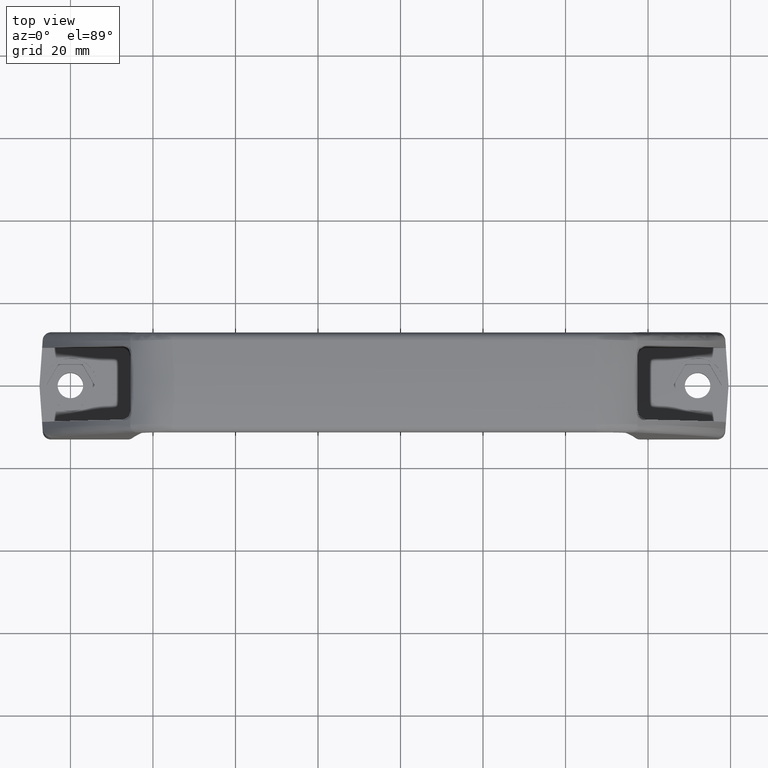
[diagram: clean part render]
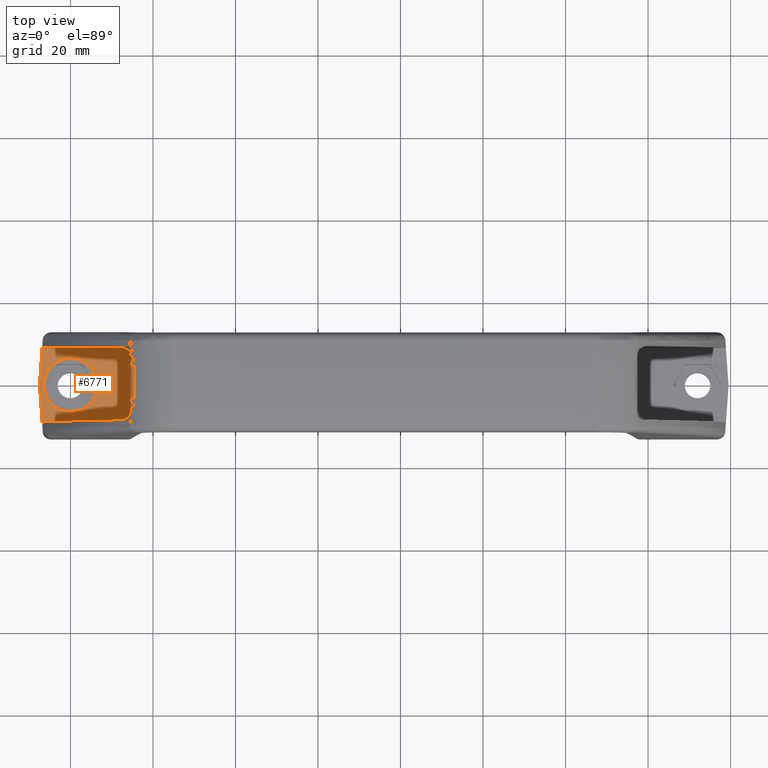
[diagram: same view with one face highlighted and labeled with its STEP entity id]
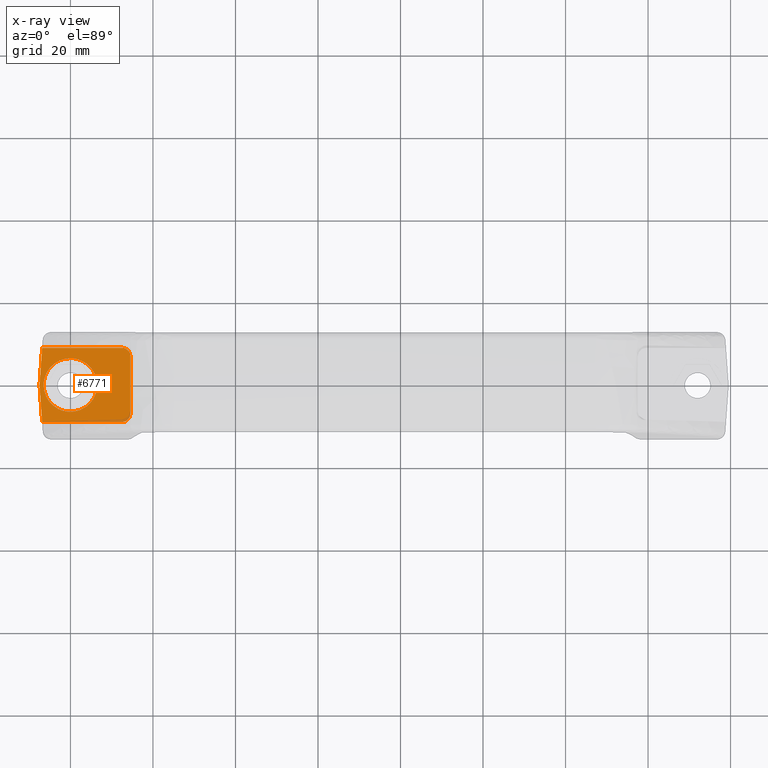
[diagram: x-ray of the same camera — body ghosted, the highlighted face saturated]
A machine part, top view. The second image highlights one B-rep face of the part: STEP entity #6771.
The next image is the same camera in x-ray: the body ghosted, the highlighted face saturated — about 3% of this face is hidden behind the body in this view.
In plain terms, the highlighted face is a freeform B-spline surface patch.
Its self-contained STEP definition (entity closure, byte-faithful):
#271=CARTESIAN_POINT('',(-0.767222561751708,-6.454562227934048,13.000000617466201));
#272=VERTEX_POINT('',#271);
#278=CARTESIAN_POINT('',(6.500000308733251,0.0,13.000000617466201));
#279=VERTEX_POINT('',#278);
#280=CARTESIAN_POINT('',(-0.767222561751708,-6.454562227934048,13.000000617466203));
#281=CARTESIAN_POINT('',(-0.384956796063989,-6.500000308733350,13.000000617466204));
#282=CARTESIAN_POINT('',(-9.947598E-014,-6.500000308733350,13.000000617466201));
#283=CARTESIAN_POINT('',(6.500000308733250,-6.500000308733350,13.000000617466201));
#284=CARTESIAN_POINT('',(6.500000308733251,0.0,13.000000617466201));
#292=(BOUNDED_CURVE()B_SPLINE_CURVE(2,(#280,#281,#282,#283,#284),.UNSPECIFIED.,.F.,.U.)B_SPLINE_CURVE_WITH_KNOTS((3,2,3),(0.229562473513467,0.250000000000000,0.500000000000000),.UNSPECIFIED.)CURVE()GEOMETRIC_REPRESENTATION_ITEM()RATIONAL_B_SPLINE_CURVE((0.956026754183618,0.976055948331097,1.0,0.707106781186548,1.0))REPRESENTATION_ITEM(''));
#293=EDGE_CURVE('',#272,#279,#292,.T.);
#295=CARTESIAN_POINT('',(0.396815526018936,6.487876497887724,13.000000617466201));
#296=VERTEX_POINT('',#295);
#297=CARTESIAN_POINT('',(6.500000308733251,0.0,13.000000617466201));
#298=CARTESIAN_POINT('',(6.500000308733250,6.114589724946550,13.000000617466201));
#299=CARTESIAN_POINT('',(0.396815526018936,6.487876497887724,13.000000617466196));
#307=(BOUNDED_CURVE()B_SPLINE_CURVE(2,(#297,#298,#299),.UNSPECIFIED.,.F.,.U.)B_SPLINE_CURVE_WITH_KNOTS((3,3),(0.500000000000000,0.739332962231609),.UNSPECIFIED.)CURVE()GEOMETRIC_REPRESENTATION_ITEM()RATIONAL_B_SPLINE_CURVE((1.0,0.719603993295303,0.976072041650999))REPRESENTATION_ITEM(''));
#308=EDGE_CURVE('',#279,#296,#307,.T.);
#382=CARTESIAN_POINT('',(-6.500000308733450,0.0,13.000000617466201));
#383=VERTEX_POINT('',#382);
#384=CARTESIAN_POINT('',(0.396815526018936,6.487876497887724,13.000000617466197));
#385=CARTESIAN_POINT('',(0.198592971068676,6.500000308733350,13.000000617466197));
#386=CARTESIAN_POINT('',(-9.947598E-014,6.500000308733350,13.000000617466201));
#387=CARTESIAN_POINT('',(-6.500000308733450,6.500000308733350,13.000000617466201));
#388=CARTESIAN_POINT('',(-6.500000308733450,0.0,13.000000617466201));
#396=(BOUNDED_CURVE()B_SPLINE_CURVE(2,(#384,#385,#386,#387,#388),.UNSPECIFIED.,.F.,.U.)B_SPLINE_CURVE_WITH_KNOTS((3,2,3),(0.739332962231610,0.750000000000000,1.0),.UNSPECIFIED.)CURVE()GEOMETRIC_REPRESENTATION_ITEM()RATIONAL_B_SPLINE_CURVE((0.976072041651001,0.987502787891246,1.0,0.707106781186548,1.0))REPRESENTATION_ITEM(''));
#397=EDGE_CURVE('',#296,#383,#396,.T.);
#399=CARTESIAN_POINT('',(-6.500000308733450,0.0,13.000000617466201));
#400=CARTESIAN_POINT('',(-6.500000308733450,-5.773134692818093,13.000000617466199));
#401=CARTESIAN_POINT('',(-0.767222561751708,-6.454562227934048,13.000000617466203));
#409=(BOUNDED_CURVE()B_SPLINE_CURVE(2,(#399,#400,#401),.UNSPECIFIED.,.F.,.U.)B_SPLINE_CURVE_WITH_KNOTS((3,3),(0.0,0.229562473513467),.UNSPECIFIED.)CURVE()GEOMETRIC_REPRESENTATION_ITEM()RATIONAL_B_SPLINE_CURVE((1.0,0.731050832855451,0.956026754183618))REPRESENTATION_ITEM(''));
#410=EDGE_CURVE('',#383,#272,#409,.T.);
#5678=CARTESIAN_POINT('',(14.517619969559799,7.000000432000820,13.000000617466201));
#5679=VERTEX_POINT('',#5678);
#5686=CARTESIAN_POINT('',(12.517619969559799,9.000000432000819,13.000000617466201));
#5687=VERTEX_POINT('',#5686);
#5693=CARTESIAN_POINT('',(14.517619969559799,7.000000432000820,13.000000617466201));
#5694=CARTESIAN_POINT('',(14.517619969559794,9.000000432000819,13.000000617466862));
#5695=CARTESIAN_POINT('',(12.517619969559799,9.000000432000819,13.000000617466201));
#5703=(BOUNDED_CURVE()B_SPLINE_CURVE(2,(#5693,#5694,#5695),.UNSPECIFIED.,.F.,.U.)CURVE()GEOMETRIC_REPRESENTATION_ITEM()QUASI_UNIFORM_CURVE()RATIONAL_B_SPLINE_CURVE((1.0,0.707106781186548,1.0))REPRESENTATION_ITEM(''));
#5704=EDGE_CURVE('',#5679,#5687,#5703,.T.);
#5723=CARTESIAN_POINT('',(12.517619969559799,-9.000000436509680,13.000000617466201));
#5724=VERTEX_POINT('',#5723);
#5731=CARTESIAN_POINT('',(14.517619969559799,-7.000000436509680,13.000000617466201));
#5732=VERTEX_POINT('',#5731);
#5738=CARTESIAN_POINT('',(12.517619969559799,-9.000000436509680,13.000000617466201));
#5739=CARTESIAN_POINT('',(14.517619969559794,-9.000000436509680,13.000000617466862));
#5740=CARTESIAN_POINT('',(14.517619969559799,-7.000000436509680,13.000000617466201));
#5748=(BOUNDED_CURVE()B_SPLINE_CURVE(2,(#5738,#5739,#5740),.UNSPECIFIED.,.F.,.U.)CURVE()GEOMETRIC_REPRESENTATION_ITEM()QUASI_UNIFORM_CURVE()RATIONAL_B_SPLINE_CURVE((1.0,0.707106781186548,1.0))REPRESENTATION_ITEM(''));
#5749=EDGE_CURVE('',#5724,#5732,#5748,.T.);
#5859=CARTESIAN_POINT('',(-7.499996204861090,-1.876971E-012,13.000000617466201));
#5860=VERTEX_POINT('',#5859);
#5866=CARTESIAN_POINT('',(-6.857139031148090,9.000000432000819,13.000000617466201));
#5867=VERTEX_POINT('',#5866);
#5868=CARTESIAN_POINT('',(-6.857139031148090,9.000000432000819,13.000000617466201));
#5869=CARTESIAN_POINT('',(-7.499996204861090,-1.876971E-012,13.000000617466201));
#5870=QUASI_UNIFORM_CURVE('',1,(#5868,#5869),.UNSPECIFIED.,.F.,.U.);
#5871=EDGE_CURVE('',#5867,#5860,#5870,.T.);
#5889=CARTESIAN_POINT('',(-6.857139030826120,-9.000000436509680,13.000000617466201));
#5890=VERTEX_POINT('',#5889);
#5896=CARTESIAN_POINT('',(-7.499996204861090,-1.876971E-012,13.000000617466201));
#5897=CARTESIAN_POINT('',(-6.857139030826120,-9.000000436509680,13.000000617466201));
#5898=QUASI_UNIFORM_CURVE('',1,(#5896,#5897),.UNSPECIFIED.,.F.,.U.);
#5899=EDGE_CURVE('',#5860,#5890,#5898,.T.);
#6475=CARTESIAN_POINT('',(14.517619969559799,-7.000000436509680,13.000000617466201));
#6476=CARTESIAN_POINT('',(14.517619969559799,7.000000432000820,13.000000617466201));
#6477=QUASI_UNIFORM_CURVE('',1,(#6475,#6476),.UNSPECIFIED.,.F.,.U.);
#6478=EDGE_CURVE('',#5732,#5679,#6477,.T.);
#6743=CARTESIAN_POINT('',(-8.599776090099002,-9.899100042753378,13.000000617466201));
#6744=CARTESIAN_POINT('',(15.617400445356200,-9.899100042753378,13.000000617466201));
#6745=CARTESIAN_POINT('',(-8.599776090099002,9.899099555446870,13.000000617466201));
#6746=CARTESIAN_POINT('',(15.617400445356200,9.899099555446870,13.000000617466201));
#6747=B_SPLINE_SURFACE_WITH_KNOTS('',1,1,((#6743,#6745),(#6744,#6746)),.UNSPECIFIED.,.F.,.F.,.U.,(2,2),(2,2),(0.0,24.217176535455199),(0.0,19.798199598200249),.UNSPECIFIED.);
#6748=CARTESIAN_POINT('',(-6.857139030826120,-9.000000436509680,13.000000617466201));
#6749=CARTESIAN_POINT('',(12.517619969559799,-9.000000436509680,13.000000617466201));
#6750=QUASI_UNIFORM_CURVE('',1,(#6748,#6749),.UNSPECIFIED.,.F.,.U.);
#6751=EDGE_CURVE('',#5890,#5724,#6750,.T.);
#6752=ORIENTED_EDGE('',*,*,#6751,.T.);
#6753=ORIENTED_EDGE('',*,*,#5749,.T.);
#6754=ORIENTED_EDGE('',*,*,#6478,.T.);
#6755=ORIENTED_EDGE('',*,*,#5704,.T.);
#6756=CARTESIAN_POINT('',(12.517619969559799,9.000000432000819,13.000000617466201));
#6757=CARTESIAN_POINT('',(-6.857139031148090,9.000000432000819,13.000000617466201));
#6758=QUASI_UNIFORM_CURVE('',1,(#6756,#6757),.UNSPECIFIED.,.F.,.U.);
#6759=EDGE_CURVE('',#5687,#5867,#6758,.T.);
#6760=ORIENTED_EDGE('',*,*,#6759,.T.);
#6761=ORIENTED_EDGE('',*,*,#5871,.T.);
#6762=ORIENTED_EDGE('',*,*,#5899,.T.);
#6763=EDGE_LOOP('',(#6752,#6753,#6754,#6755,#6760,#6761,#6762));
#6764=FACE_OUTER_BOUND('',#6763,.T.);
#6765=ORIENTED_EDGE('',*,*,#308,.F.);
#6766=ORIENTED_EDGE('',*,*,#293,.F.);
#6767=ORIENTED_EDGE('',*,*,#410,.F.);
#6768=ORIENTED_EDGE('',*,*,#397,.F.);
#6769=EDGE_LOOP('',(#6765,#6766,#6767,#6768));
#6770=FACE_BOUND('',#6769,.T.);
#6771=ADVANCED_FACE('',(#6764,#6770),#6747,.T.);